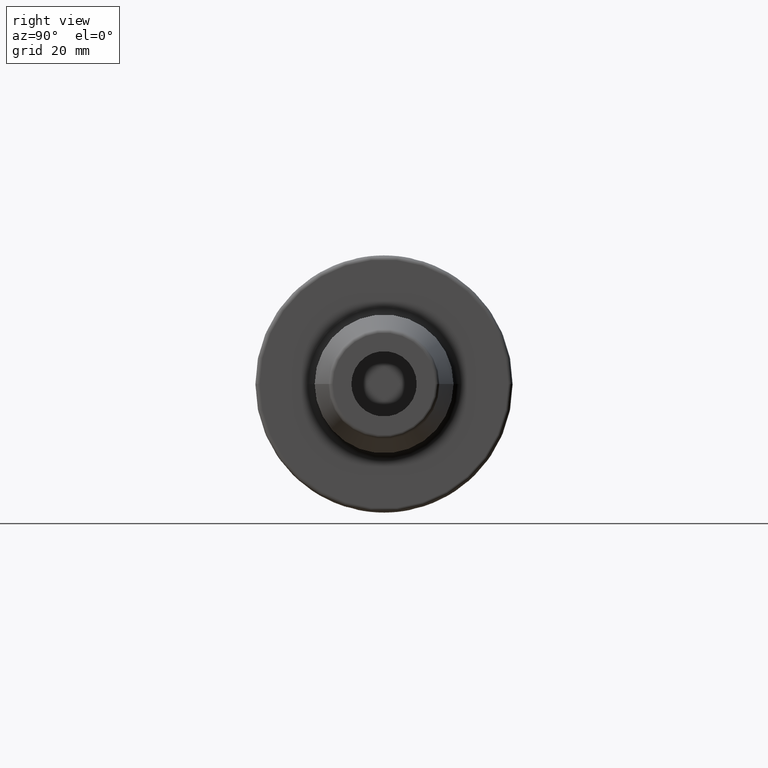
[diagram: clean part render]
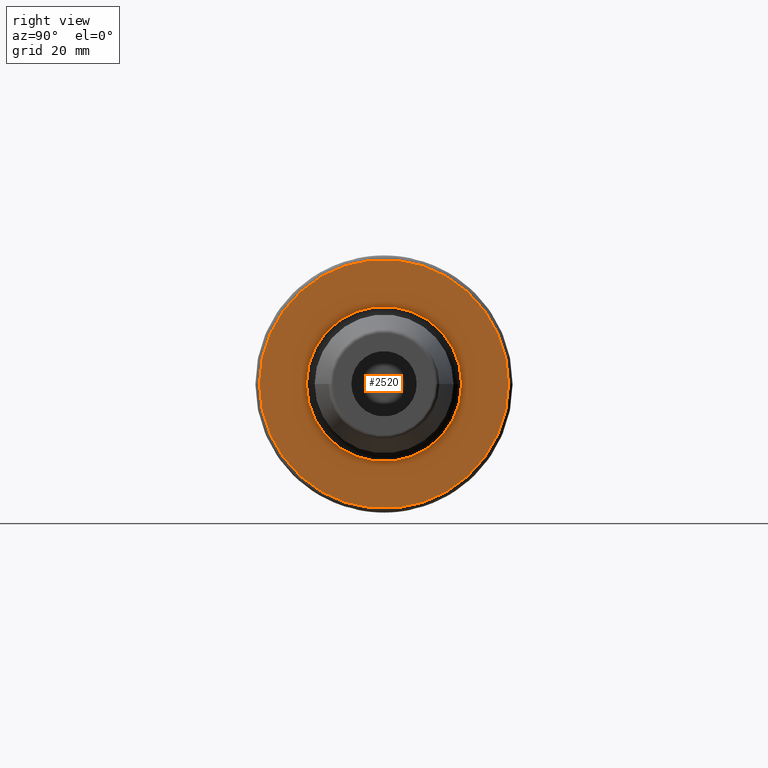
[diagram: same view with one face highlighted and labeled with its STEP entity id]
A machine part, right view. The second image highlights one B-rep face of the part: STEP entity #2520.
In plain terms, the highlighted planar face has unit normal (1, 0, 0).
Its self-contained STEP definition (entity closure, byte-faithful):
#816=CARTESIAN_POINT('',(2.7E1,0.E0,0.E0));
#817=DIRECTION('',(1.E0,0.E0,0.E0));
#818=DIRECTION('',(0.E0,1.E0,0.E0));
#819=AXIS2_PLACEMENT_3D('',#816,#817,#818);
#831=CARTESIAN_POINT('',(2.7E1,0.E0,0.E0));
#832=DIRECTION('',(-1.E0,0.E0,0.E0));
#833=DIRECTION('',(0.E0,1.E0,0.E0));
#834=AXIS2_PLACEMENT_3D('',#831,#832,#833);
#836=CARTESIAN_POINT('',(2.7E1,0.E0,0.E0));
#837=DIRECTION('',(1.E0,0.E0,0.E0));
#838=DIRECTION('',(0.E0,-1.E0,0.E0));
#839=AXIS2_PLACEMENT_3D('',#836,#837,#838);
#841=CARTESIAN_POINT('',(2.7E1,0.E0,0.E0));
#842=DIRECTION('',(1.E0,0.E0,0.E0));
#843=DIRECTION('',(0.E0,1.E0,0.E0));
#844=AXIS2_PLACEMENT_3D('',#841,#842,#843);
#1304=CARTESIAN_POINT('',(2.7E1,3.04875E1,0.E0));
#1305=VERTEX_POINT('',#1304);
#1306=CARTESIAN_POINT('',(2.7E1,-3.04875E1,0.E0));
#1307=VERTEX_POINT('',#1306);
#1401=CARTESIAN_POINT('',(2.7E1,-1.9E1,0.E0));
#1402=CARTESIAN_POINT('',(2.7E1,1.9E1,0.E0));
#1403=VERTEX_POINT('',#1401);
#1404=VERTEX_POINT('',#1402);
#2505=CARTESIAN_POINT('',(2.7E1,0.E0,0.E0));
#2506=DIRECTION('',(1.E0,0.E0,0.E0));
#2507=DIRECTION('',(0.E0,-1.E0,0.E0));
#2508=AXIS2_PLACEMENT_3D('',#2505,#2506,#2507);
#2509=PLANE('',#2508);
#2510=ORIENTED_EDGE('',*,*,#2500,.T.);
#2511=ORIENTED_EDGE('',*,*,#2484,.F.);
#2512=EDGE_LOOP('',(#2510,#2511));
#2513=FACE_OUTER_BOUND('',#2512,.F.);
#2515=ORIENTED_EDGE('',*,*,#2514,.T.);
#2517=ORIENTED_EDGE('',*,*,#2516,.T.);
#2518=EDGE_LOOP('',(#2515,#2517));
#2519=FACE_BOUND('',#2518,.F.);
#2520=ADVANCED_FACE('',(#2513,#2519),#2509,.T.);
#820=CIRCLE('',#819,3.04875E1);
#835=CIRCLE('',#834,3.04875E1);
#840=CIRCLE('',#839,1.9E1);
#845=CIRCLE('',#844,1.9E1);
#2484=EDGE_CURVE('',#1305,#1307,#820,.T.);
#2500=EDGE_CURVE('',#1305,#1307,#835,.T.);
#2514=EDGE_CURVE('',#1403,#1404,#840,.T.);
#2516=EDGE_CURVE('',#1404,#1403,#845,.T.);